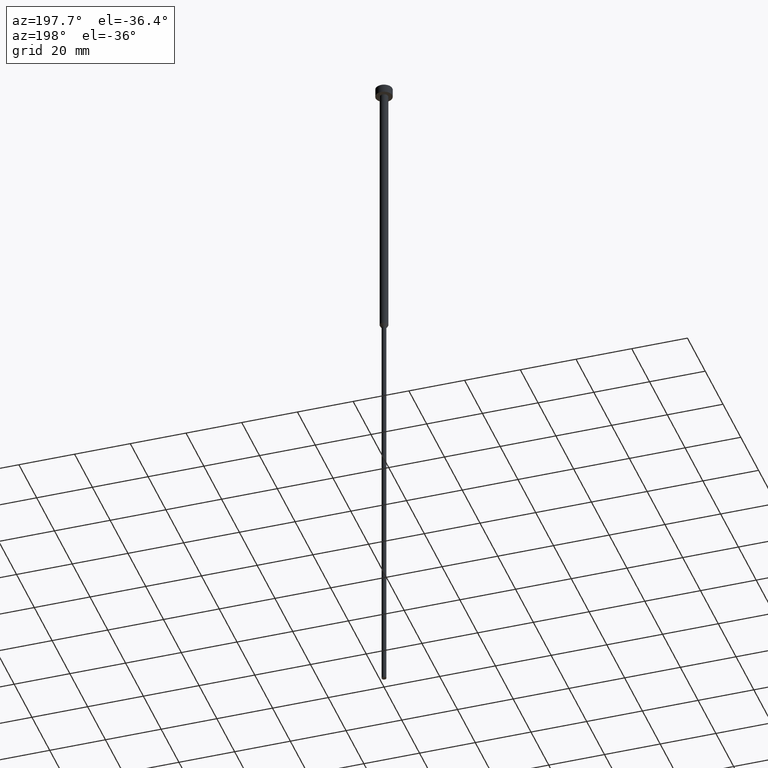
[diagram: clean part render]
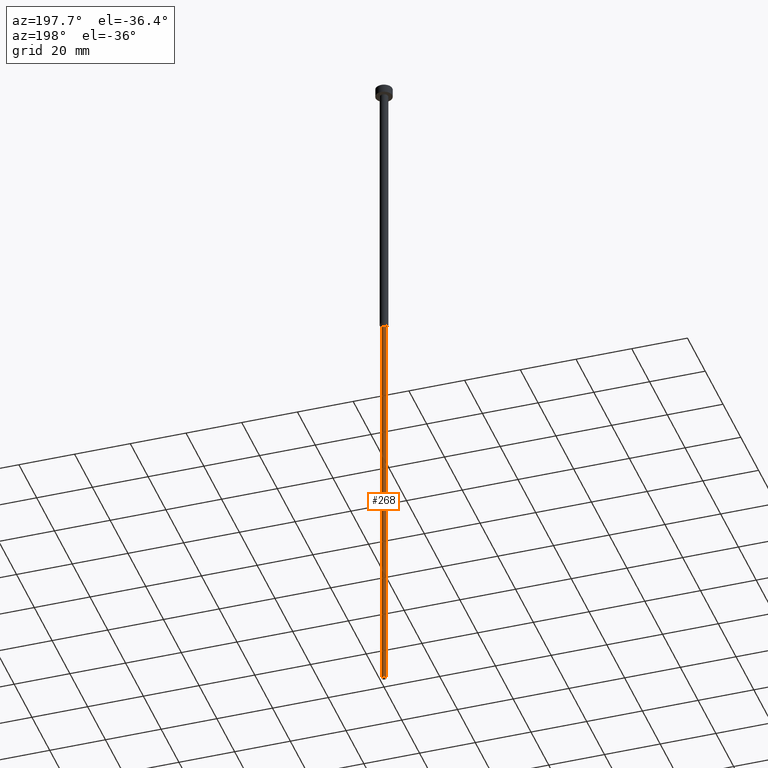
[diagram: same view with one face highlighted and labeled with its STEP entity id]
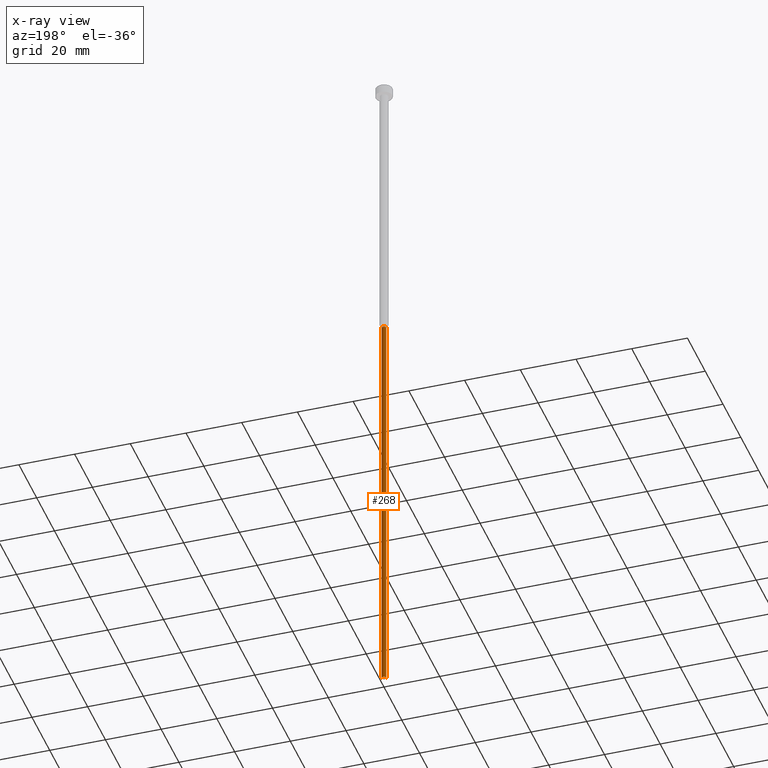
[diagram: x-ray of the same camera — body ghosted, the highlighted face saturated]
A machine part, auxiliary view. The second image highlights one B-rep face of the part: STEP entity #268.
The next image is the same camera in x-ray: the body ghosted, the highlighted face saturated — about 0% of this face is hidden behind the body in this view.
In plain terms, the highlighted cylindrical surface (edge-blend (fillet) strip) has radius 0.8 mm, axis along (-0, -0, 1).
Its self-contained STEP definition (entity closure, byte-faithful):
#1 = VECTOR ( 'NONE', #136, 1000.000000000000000 ) ;
#11 = DIRECTION ( 'NONE',  ( -0.000000000000000000, -0.000000000000000000, 1.000000000000000000 ) ) ;
#19 = DIRECTION ( 'NONE',  ( 1.000000000000000000, 0.000000000000000000, 0.000000000000000000 ) ) ;
#33 = CARTESIAN_POINT ( 'NONE',  ( 0.8000000000000000444, 0.000000000000000000, 0.000000000000000000 ) ) ;
#35 = CIRCLE ( 'NONE', #219, 0.7999999999999999334 ) ;
#39 = ORIENTED_EDGE ( 'NONE', *, *, #339, .T. ) ;
#42 = FACE_OUTER_BOUND ( 'NONE', #229, .T. ) ;
#55 = DIRECTION ( 'NONE',  ( 1.000000000000000000, 0.000000000000000000, 0.000000000000000000 ) ) ;
#60 = CARTESIAN_POINT ( 'NONE',  ( -0.8000000000000002665, 9.797174393178828616E-17, -101.2124355652982075 ) ) ;
#65 = CARTESIAN_POINT ( 'NONE',  ( -0.7999999999999999334, 9.797174393178826150E-17, -250.0000000000000000 ) ) ;
#67 = AXIS2_PLACEMENT_3D ( 'NONE', #148, #259, #19 ) ;
#71 = VERTEX_POINT ( 'NONE', #83 ) ;
#83 = CARTESIAN_POINT ( 'NONE',  ( 0.7999999999999999334, 0.000000000000000000, -250.0000000000000000 ) ) ;
#90 = LINE ( 'NONE', #33, #1 ) ;
#101 = ORIENTED_EDGE ( 'NONE', *, *, #110, .F. ) ;
#102 = EDGE_CURVE ( 'NONE', #71, #168, #35, .T. ) ;
#106 = ORIENTED_EDGE ( 'NONE', *, *, #282, .F. ) ;
#110 = EDGE_CURVE ( 'NONE', #71, #318, #90, .T. ) ;
#112 = VECTOR ( 'NONE', #308, 1000.000000000000000 ) ;
#134 = CIRCLE ( 'NONE', #216, 0.8000000000000001554 ) ;
#136 = DIRECTION ( 'NONE',  ( -0.000000000000000000, -0.000000000000000000, 1.000000000000000000 ) ) ;
#148 = CARTESIAN_POINT ( 'NONE',  ( 0.000000000000000000, 0.000000000000000000, 0.000000000000000000 ) ) ;
#152 = ORIENTED_EDGE ( 'NONE', *, *, #102, .T. ) ;
#167 = DIRECTION ( 'NONE',  ( 1.000000000000000000, 0.000000000000000000, 0.000000000000000000 ) ) ;
#168 = VERTEX_POINT ( 'NONE', #65 ) ;
#172 = LINE ( 'NONE', #175, #112 ) ;
#175 = CARTESIAN_POINT ( 'NONE',  ( -0.8000000000000000444, 9.797174393178826150E-17, 0.000000000000000000 ) ) ;
#196 = CYLINDRICAL_SURFACE ( 'NONE', #67, 0.8000000000000000444 ) ;
#216 = AXIS2_PLACEMENT_3D ( 'NONE', #328, #330, #167 ) ;
#219 = AXIS2_PLACEMENT_3D ( 'NONE', #300, #11, #55 ) ;
#229 = EDGE_LOOP ( 'NONE', ( #152, #39, #106, #101 ) ) ;
#259 = DIRECTION ( 'NONE',  ( -0.000000000000000000, -0.000000000000000000, 1.000000000000000000 ) ) ;
#268 = ADVANCED_FACE ( 'NONE', ( #42 ), #196, .T. ) ;
#278 = CARTESIAN_POINT ( 'NONE',  ( 0.8000000000000001554, 0.000000000000000000, -101.2124355652982075 ) ) ;
#282 = EDGE_CURVE ( 'NONE', #318, #348, #134, .T. ) ;
#300 = CARTESIAN_POINT ( 'NONE',  ( 0.000000000000000000, 0.000000000000000000, -250.0000000000000000 ) ) ;
#308 = DIRECTION ( 'NONE',  ( -0.000000000000000000, -0.000000000000000000, 1.000000000000000000 ) ) ;
#318 = VERTEX_POINT ( 'NONE', #278 ) ;
#328 = CARTESIAN_POINT ( 'NONE',  ( 0.000000000000000000, 0.000000000000000000, -101.2124355652982075 ) ) ;
#330 = DIRECTION ( 'NONE',  ( -0.000000000000000000, -0.000000000000000000, 1.000000000000000000 ) ) ;
#339 = EDGE_CURVE ( 'NONE', #168, #348, #172, .T. ) ;
#348 = VERTEX_POINT ( 'NONE', #60 ) ;